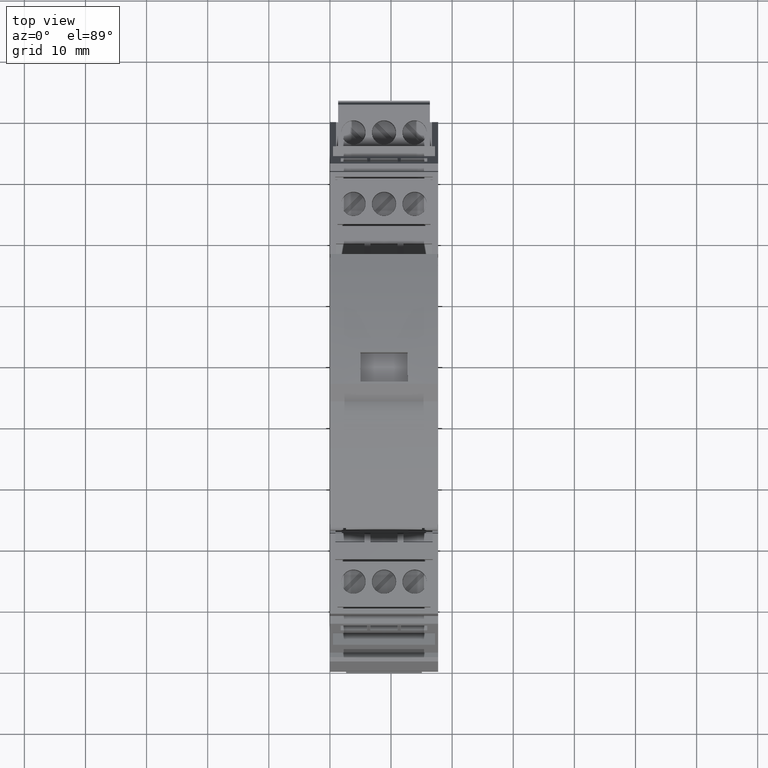
[diagram: clean part render]
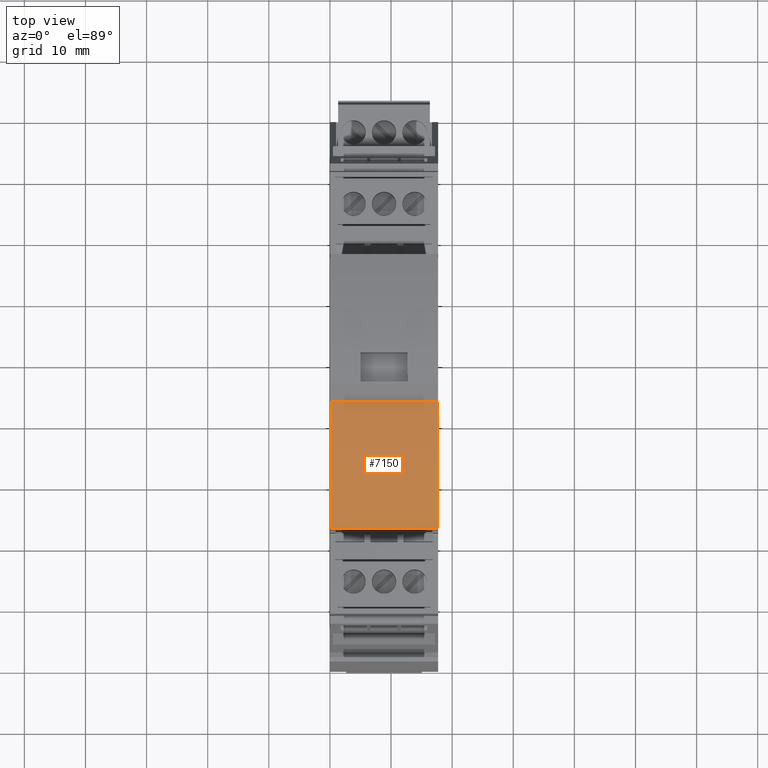
[diagram: same view with one face highlighted and labeled with its STEP entity id]
A machine part, top view. The second image highlights one B-rep face of the part: STEP entity #7150.
In plain terms, the highlighted cylindrical surface (partial cylindrical patch) has radius 69 mm, axis along (-1, 0, -0).
Its self-contained STEP definition (entity closure, byte-faithful):
#6740=CARTESIAN_POINT('',(69.3535475957717,16.1190406819792,
-33.5967985079098));
#6750=DIRECTION('',(-4.39608349825762E-11,-8.17233597831012E-17,1.));
#6760=DIRECTION('',(1.,-3.66047483845538E-27,4.39608349825762E-11));
#6770=AXIS2_PLACEMENT_3D('',#6740,#6750,#6760);
#6780=CYLINDRICAL_SURFACE('',#6770,69.);
#6790=CARTESIAN_POINT('',(91.753547595139,81.3818938224016,
-33.596798506925));
#6800=DIRECTION('',(-4.39608349825762E-11,-8.17233597831012E-17,1.));
#6810=VECTOR('',#6800,1.);
#6820=LINE('',#6790,#6810);
#6830=CARTESIAN_POINT('',(91.7535475959083,81.3818938224016,
-51.096798506925));
#6840=VERTEX_POINT('',#6830);
#6850=CARTESIAN_POINT('',(91.753547595139,81.3818938224016,
-33.596798506925));
#6860=VERTEX_POINT('',#6850);
#6870=EDGE_CURVE('',#6840,#6860,#6820,.T.);
#6880=ORIENTED_EDGE('',*,*,#6870,.F.);
#6890=CARTESIAN_POINT('',(69.3535475957717,16.1190406819792,
-33.5967985079098));
#6900=DIRECTION('',(-4.39608349825762E-11,-8.17233597831012E-17,1.));
#6910=DIRECTION('',(1.,-3.66047483845538E-27,4.39608349825762E-11));
#6920=AXIS2_PLACEMENT_3D('',#6890,#6900,#6910);
#6930=CIRCLE('',#6920,69.);
#6940=CARTESIAN_POINT('',(71.0895625787766,85.097198471085,
-33.5967985078335));
#6950=VERTEX_POINT('',#6940);
#6960=EDGE_CURVE('',#6860,#6950,#6930,.T.);
#6970=ORIENTED_EDGE('',*,*,#6960,.F.);
#6980=CARTESIAN_POINT('',(71.0895625787766,85.097198471085,
-33.5967985078335));
#6990=DIRECTION('',(-4.39608349825762E-11,-8.17233597831012E-17,1.));
#7000=VECTOR('',#6990,1.);
#7010=LINE('',#6980,#7000);
#7020=CARTESIAN_POINT('',(71.0895625795459,85.097198471085,
-51.0967985078335));
#7030=VERTEX_POINT('',#7020);
#7040=EDGE_CURVE('',#7030,#6950,#7010,.T.);
#7050=ORIENTED_EDGE('',*,*,#7040,.T.);
#7060=CARTESIAN_POINT('',(69.353547596541,16.1190406819792,
-51.0967985079098));
#7070=DIRECTION('',(-4.39608349825762E-11,-8.17233597831012E-17,1.));
#7080=DIRECTION('',(1.,-3.66047483845538E-27,4.39608349825762E-11));
#7090=AXIS2_PLACEMENT_3D('',#7060,#7070,#7080);
#7100=CIRCLE('',#7090,69.);
#7110=EDGE_CURVE('',#6840,#7030,#7100,.T.);
#7120=ORIENTED_EDGE('',*,*,#7110,.T.);
#7130=EDGE_LOOP('',(#7120,#7050,#6970,#6880));
#7140=FACE_OUTER_BOUND('',#7130,.T.);
#7150=ADVANCED_FACE('',(#7140),#6780,.T.);